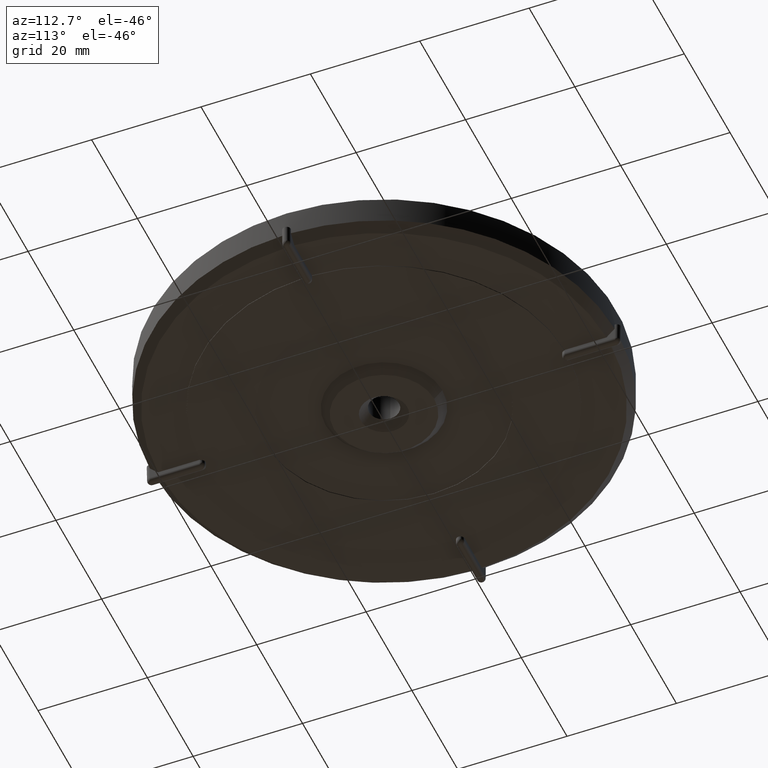
[diagram: clean part render]
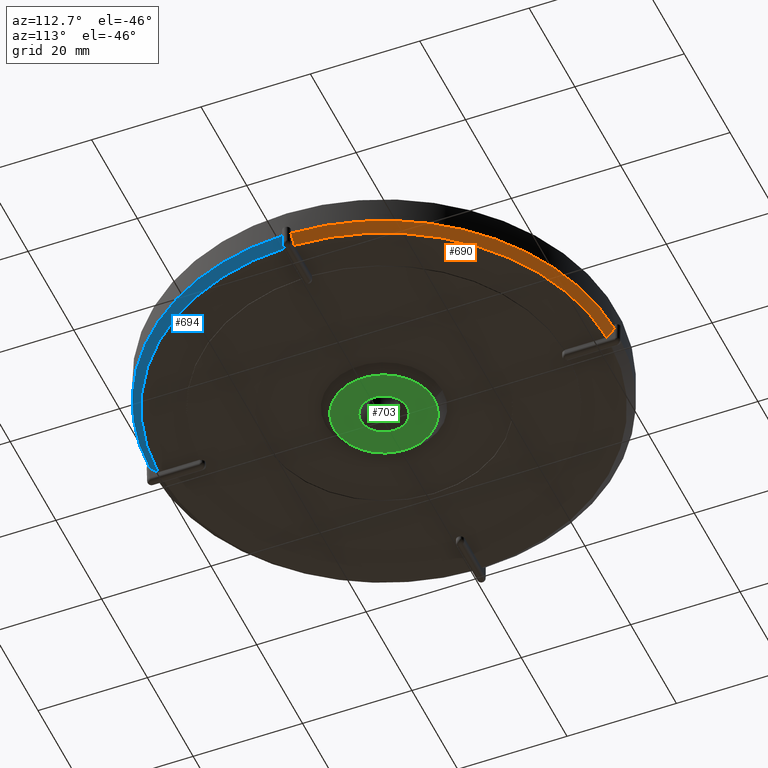
[diagram: same view with three faces highlighted in distinct colors, each labeled with its STEP entity id]
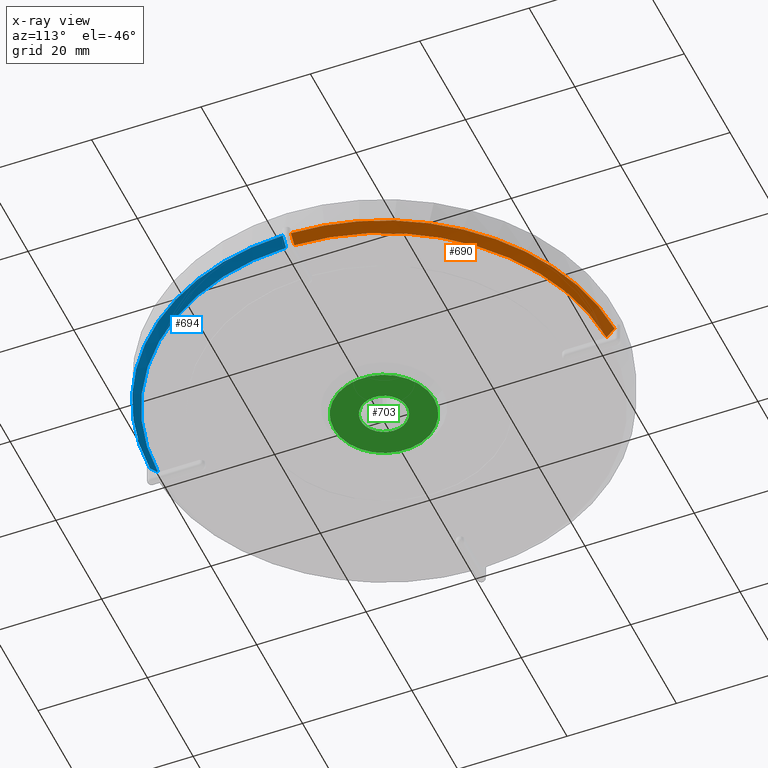
[diagram: x-ray of the same camera — body ghosted, the three highlighted faces saturated]
A machine part, auxiliary view with three faces highlighted in distinct colors.
The next image is the same camera in x-ray (body ghosted, the three faces saturated) — at least one of them is partly hidden behind the body in this view.
Their STEP definitions:

[orange] entity #690 — the highlighted conical surface has half-angle 45 deg.
#169=LINE('',#8929,#289);
#170=LINE('',#8931,#290);
#289=VECTOR('',#3113,1.);
#290=VECTOR('',#3116,1.);
#305=CONICAL_SURFACE('',#2658,42.5000000811643,44.9999999999743);
#488=CIRCLE('',#2517,42.5);
#548=CIRCLE('',#2633,41.0000001649982);
#690=ADVANCED_FACE('',(#839),#305,.T.);
#839=FACE_OUTER_BOUND('',#1004,.T.);
#1004=EDGE_LOOP('',(#1684,#1685,#1686,#1687));
#1684=ORIENTED_EDGE('',*,*,#2346,.F.);
#1685=ORIENTED_EDGE('',*,*,#2042,.F.);
#1686=ORIENTED_EDGE('',*,*,#2347,.T.);
#1687=ORIENTED_EDGE('',*,*,#2307,.T.);
#1796=VERTEX_POINT('',#3858);
#1797=VERTEX_POINT('',#3860);
#1976=VERTEX_POINT('',#8839);
#1977=VERTEX_POINT('',#8841);
#2042=EDGE_CURVE('',#1796,#1797,#488,.T.);
#2307=EDGE_CURVE('',#1977,#1976,#548,.T.);
#2346=EDGE_CURVE('',#1797,#1976,#169,.T.);
#2347=EDGE_CURVE('',#1796,#1977,#170,.T.);
#2517=AXIS2_PLACEMENT_3D('',#3859,#2729,#2730);
#2633=AXIS2_PLACEMENT_3D('',#8840,#3037,#3038);
#2658=AXIS2_PLACEMENT_3D('',#8932,#3117,#3118);
#2729=DIRECTION('',(0.,0.,1.));
#2730=DIRECTION('',(-1.,0.,0.));
#3037=DIRECTION('',(0.,0.,1.));
#3038=DIRECTION('',(1.,0.,0.));
#3113=DIRECTION('',(2.10489096021047E-8,-0.707161825918154,-0.707051732169649));
#3116=DIRECTION('',(-0.707161840075201,7.71841075565341E-10,-0.707051718010398));
#3117=DIRECTION('',(0.,0.,1.));
#3118=DIRECTION('',(-1.,0.,3.12000625151662E-17));
#3858=CARTESIAN_POINT('',(42.4933818376842,0.7499999985677,3.10000000001276));
#3859=CARTESIAN_POINT('',(5.02898827078395E-30,7.86315457190769E-15,3.1));
#3860=CARTESIAN_POINT('',(0.749999998567688,42.4933818376841,3.10000000001258));
#8839=CARTESIAN_POINT('',(0.75,40.9931397524633,1.60000008249844));
#8840=CARTESIAN_POINT('',(5.02898827078395E-30,7.86315457190769E-15,1.60000016499689));
#8841=CARTESIAN_POINT('',(40.9931397524633,0.750000000000008,1.60000008249844));
#8929=CARTESIAN_POINT('',(0.750000004865729,41.7432619175616,2.34999898049074));
#8931=CARTESIAN_POINT('',(41.7432619138075,0.749999999488536,2.34999898424578));
#8932=CARTESIAN_POINT('',(5.02898827078395E-30,7.86315457190769E-15,3.10000008116426));

[blue] entity #694 — the highlighted conical surface has half-angle 45 deg.
#173=LINE('',#8937,#293);
#174=LINE('',#8939,#294);
#293=VECTOR('',#3125,1.);
#294=VECTOR('',#3128,1.);
#306=CONICAL_SURFACE('',#2662,42.5000000811643,44.9999999999743);
#486=CIRCLE('',#2515,42.5);
#551=CIRCLE('',#2640,41.0000001649982);
#694=ADVANCED_FACE('',(#843),#306,.T.);
#843=FACE_OUTER_BOUND('',#1008,.T.);
#1008=EDGE_LOOP('',(#1706,#1707,#1708,#1709));
#1706=ORIENTED_EDGE('',*,*,#2350,.F.);
#1707=ORIENTED_EDGE('',*,*,#2038,.F.);
#1708=ORIENTED_EDGE('',*,*,#2351,.T.);
#1709=ORIENTED_EDGE('',*,*,#2319,.T.);
#1792=VERTEX_POINT('',#3850);
#1793=VERTEX_POINT('',#3852);
#1982=VERTEX_POINT('',#8867);
#1983=VERTEX_POINT('',#8869);
#2038=EDGE_CURVE('',#1792,#1793,#486,.T.);
#2319=EDGE_CURVE('',#1983,#1982,#551,.T.);
#2350=EDGE_CURVE('',#1793,#1982,#173,.T.);
#2351=EDGE_CURVE('',#1792,#1983,#174,.T.);
#2515=AXIS2_PLACEMENT_3D('',#3851,#2723,#2724);
#2640=AXIS2_PLACEMENT_3D('',#8868,#3059,#3060);
#2662=AXIS2_PLACEMENT_3D('',#8940,#3129,#3130);
#2723=DIRECTION('',(0.,0.,1.));
#2724=DIRECTION('',(-1.,0.,0.));
#3059=DIRECTION('',(0.,-5.10212786077625E-18,1.));
#3060=DIRECTION('',(0.,1.,5.28879106401121E-18));
#3125=DIRECTION('',(-0.707161825918154,-2.10489117485425E-8,-0.70705173216965));
#3128=DIRECTION('',(7.71830343376606E-10,0.707161840075199,-0.707051718010401));
#3129=DIRECTION('',(0.,-5.10212786077625E-18,1.));
#3130=DIRECTION('',(0.,-1.,3.03680608480951E-17));
#3850=CARTESIAN_POINT('',(0.749999998567702,-42.4933818376842,3.10000000001276));
#3851=CARTESIAN_POINT('',(5.02898827078395E-30,7.86315457190769E-15,3.1));
#3852=CARTESIAN_POINT('',(42.4933818376841,-0.749999998567679,3.10000000001258));
#8867=CARTESIAN_POINT('',(40.9931397524633,-0.749999999999992,1.60000008249844));
#8868=CARTESIAN_POINT('',(5.02898827078395E-30,7.87080776327113E-15,1.60000016499689));
#8869=CARTESIAN_POINT('',(0.75,-40.9931397524632,1.60000008249844));
#8937=CARTESIAN_POINT('',(41.7432619175616,-0.750000004865721,2.34999898049074));
#8939=CARTESIAN_POINT('',(0.74999999948853,-41.7432619138075,2.34999898424577));
#8940=CARTESIAN_POINT('',(5.02898827078395E-30,7.86315457190769E-15,3.10000008116426));

[green] entity #703 — the highlighted planar face has unit normal (0, 0, -1).
#425=PLANE('',#2674);
#468=FACE_BOUND('',#1019,.T.);
#469=FACE_BOUND('',#1020,.T.);
#557=CIRCLE('',#2671,9.175);
#558=CIRCLE('',#2673,4.24999999995634);
#703=ADVANCED_FACE('',(#468,#469),#425,.T.);
#1019=EDGE_LOOP('',(#1747));
#1020=EDGE_LOOP('',(#1748));
#1747=ORIENTED_EDGE('',*,*,#2359,.T.);
#1748=ORIENTED_EDGE('',*,*,#2358,.T.);
#1994=VERTEX_POINT('',#8956);
#1995=VERTEX_POINT('',#8959);
#2358=EDGE_CURVE('',#1994,#1994,#557,.T.);
#2359=EDGE_CURVE('',#1995,#1995,#558,.T.);
#2671=AXIS2_PLACEMENT_3D('',#8955,#3152,#3153);
#2673=AXIS2_PLACEMENT_3D('',#8958,#3156,#3157);
#2674=AXIS2_PLACEMENT_3D('',#8960,#3158,#3159);
#3152=DIRECTION('',(0.,-2.03129212643667E-17,-1.));
#3153=DIRECTION('',(0.,1.,-2.06796054697508E-17));
#3156=DIRECTION('',(0.,0.,1.));
#3157=DIRECTION('',(-1.,0.,0.));
#3158=DIRECTION('',(0.,0.,-1.));
#3159=DIRECTION('',(1.,0.,0.));
#8955=CARTESIAN_POINT('',(5.02898827078395E-30,7.83268519001112E-15,0.100000000000002));
#8956=CARTESIAN_POINT('',(5.02898827078395E-30,9.17500000000001,0.100000000000002));
#8958=CARTESIAN_POINT('',(5.02898827078395E-30,7.86315457190769E-15,0.100000000023011));
#8959=CARTESIAN_POINT('',(-4.24999999995634,7.86315457190769E-15,0.100000000023011));
#8960=CARTESIAN_POINT('',(5.02898827078395E-30,7.86315457190769E-15,0.100000000000001));